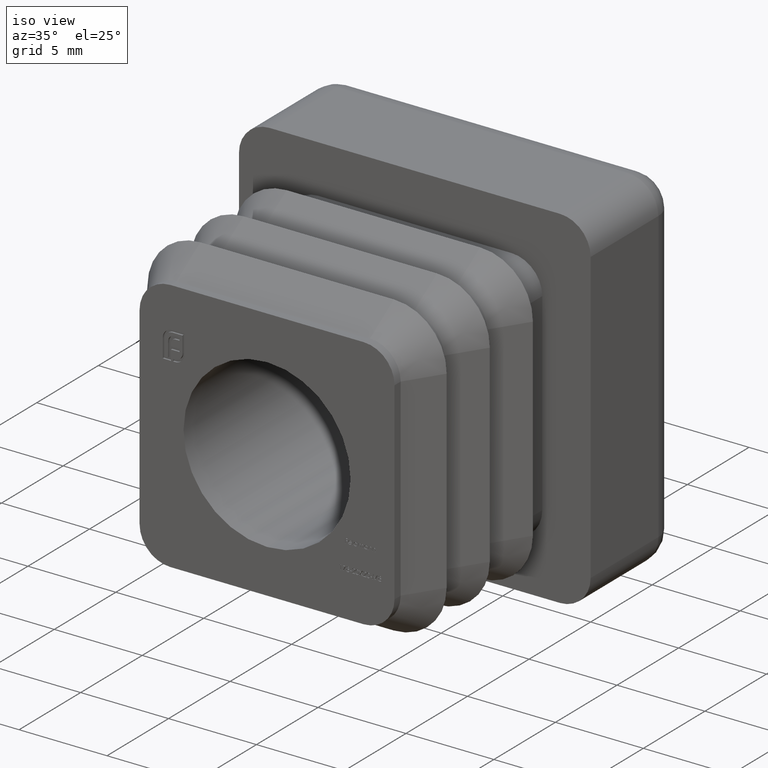
[diagram: clean part render]
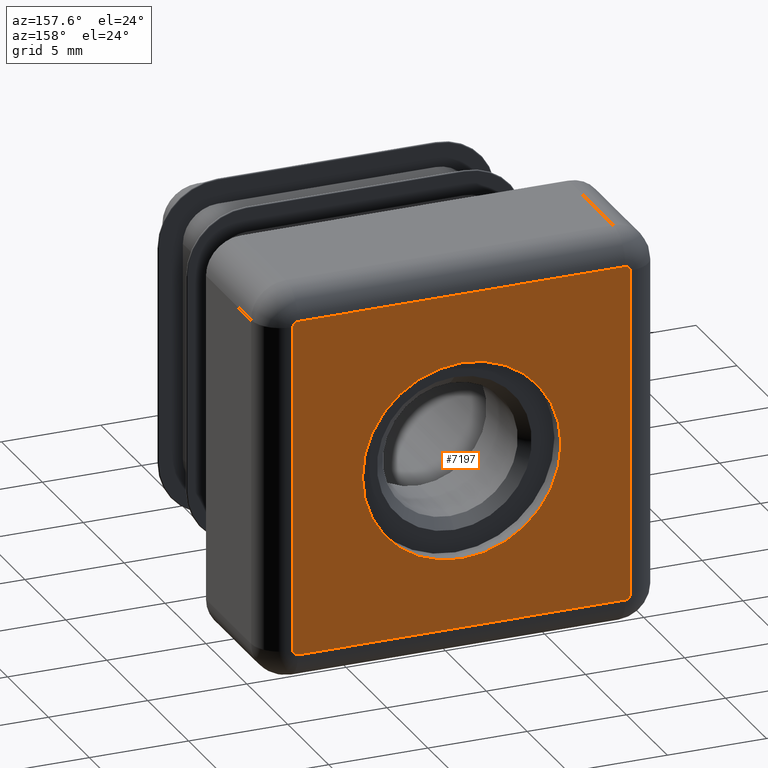
[diagram: tour spotlight — one face highlighted and labeled with its STEP entity id]
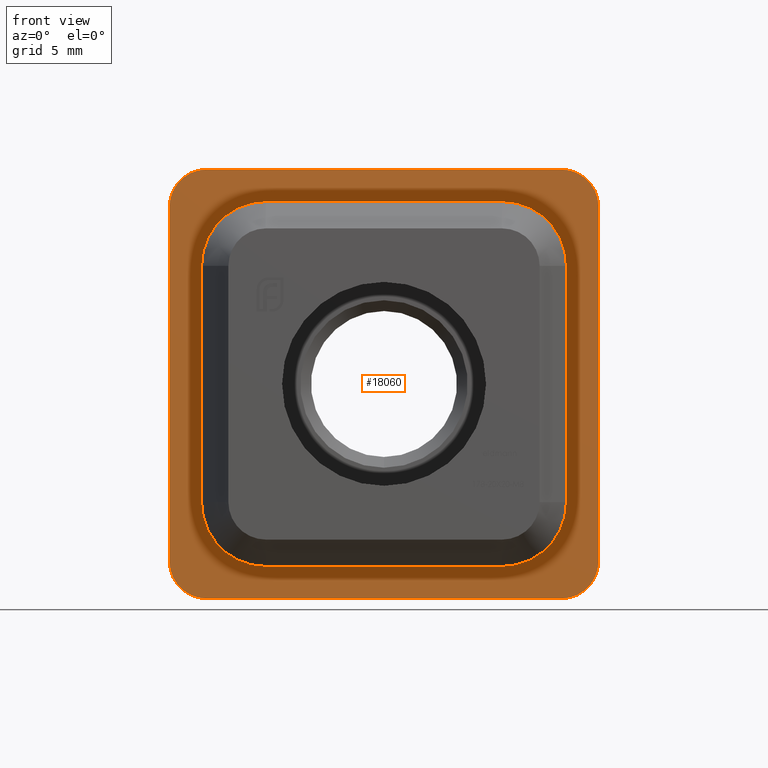
[diagram: tour spotlight — one face highlighted and labeled with its STEP entity id]
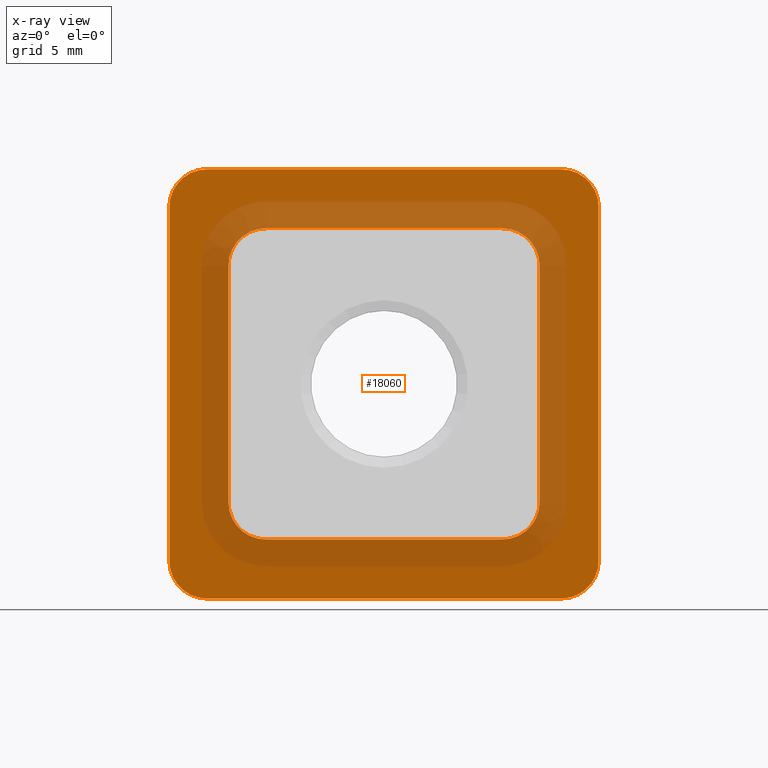
[diagram: x-ray of the same camera — body ghosted, this tour face saturated]
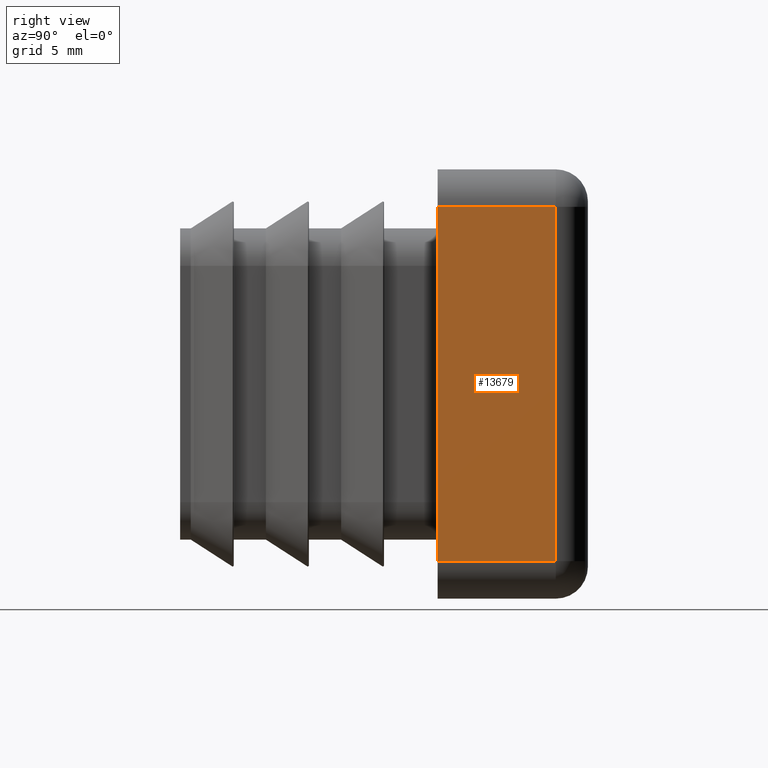
[diagram: tour spotlight — one face highlighted and labeled with its STEP entity id]
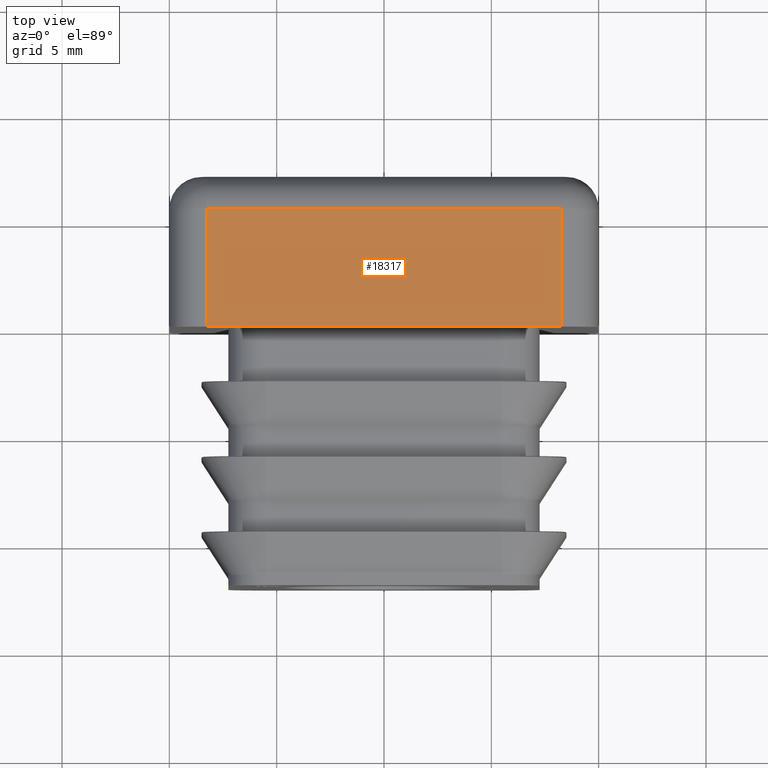
[diagram: tour spotlight — one face highlighted and labeled with its STEP entity id]
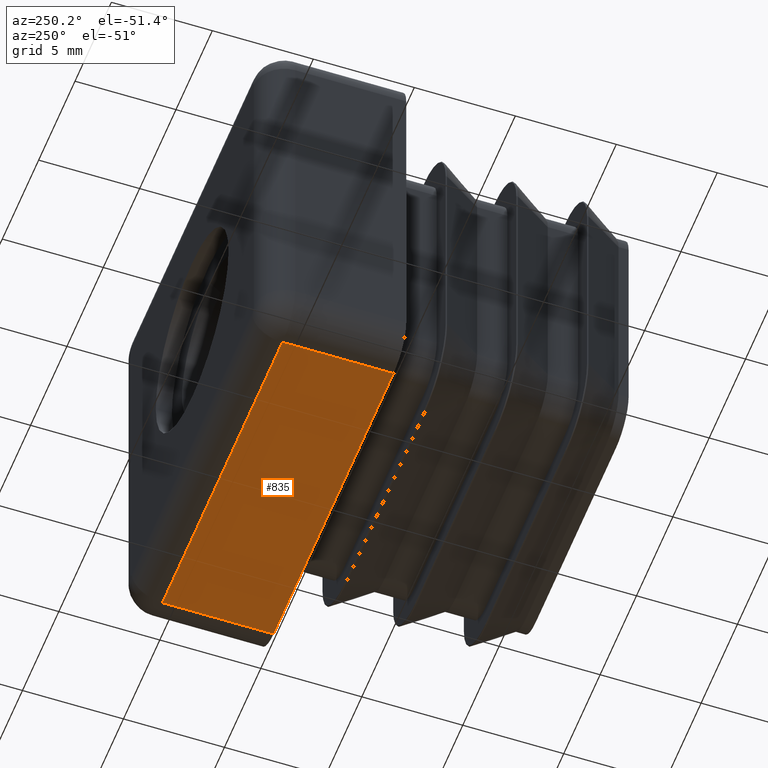
[diagram: tour spotlight — one face highlighted and labeled with its STEP entity id]
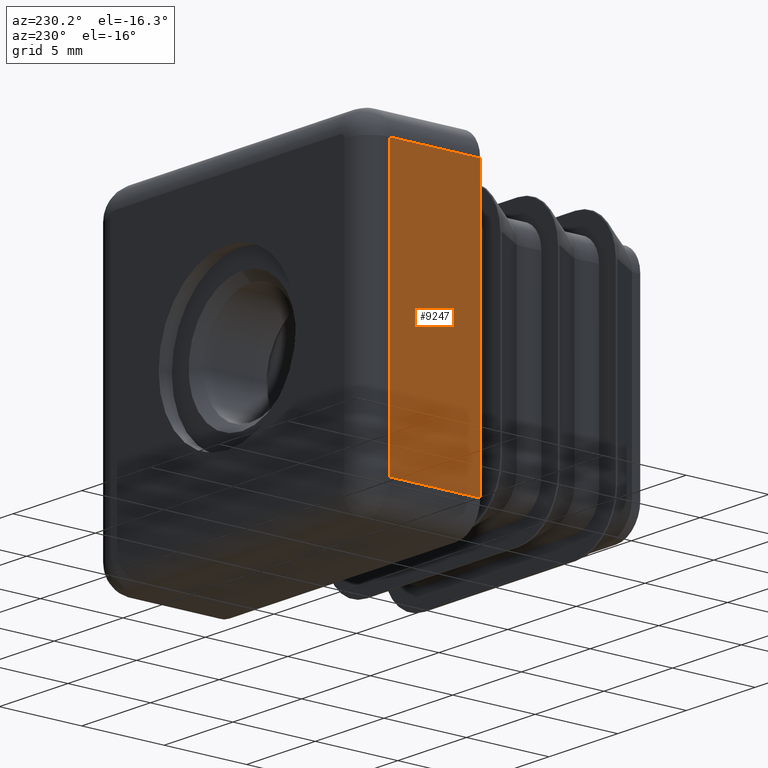
[diagram: tour spotlight — one face highlighted and labeled with its STEP entity id]
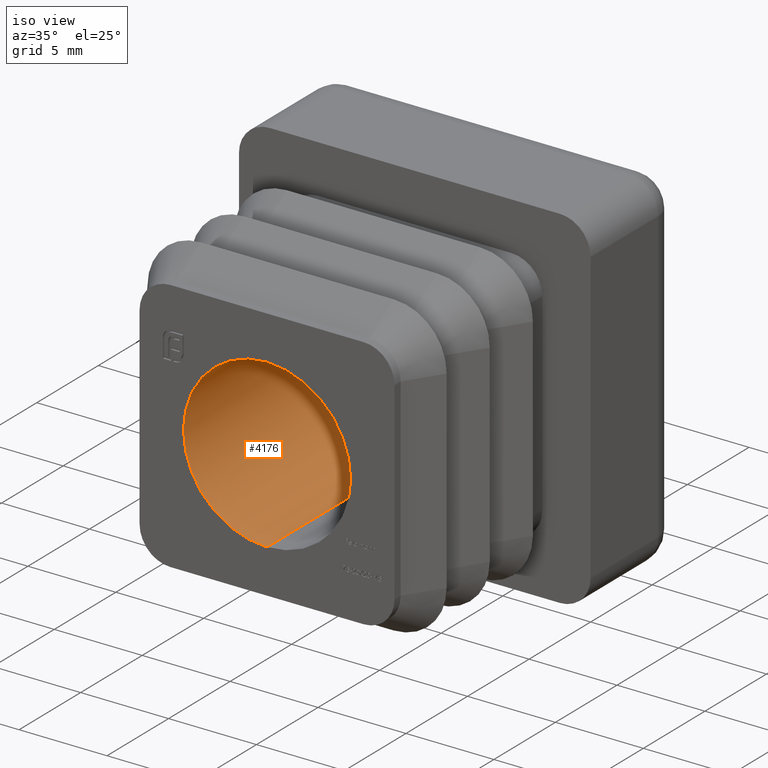
[diagram: tour spotlight — one face highlighted and labeled with its STEP entity id]
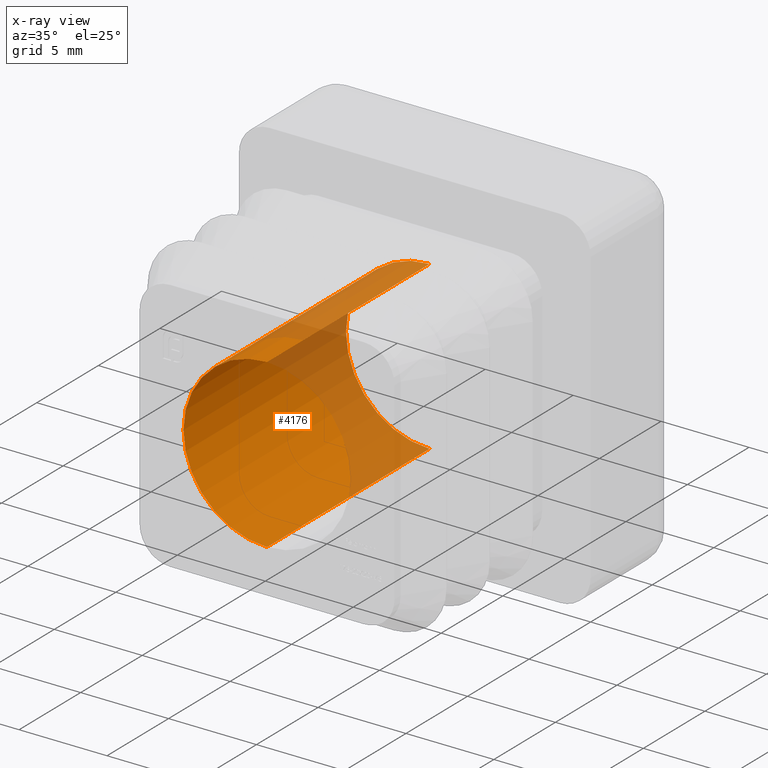
[diagram: x-ray of the same camera — body ghosted, this tour face saturated]
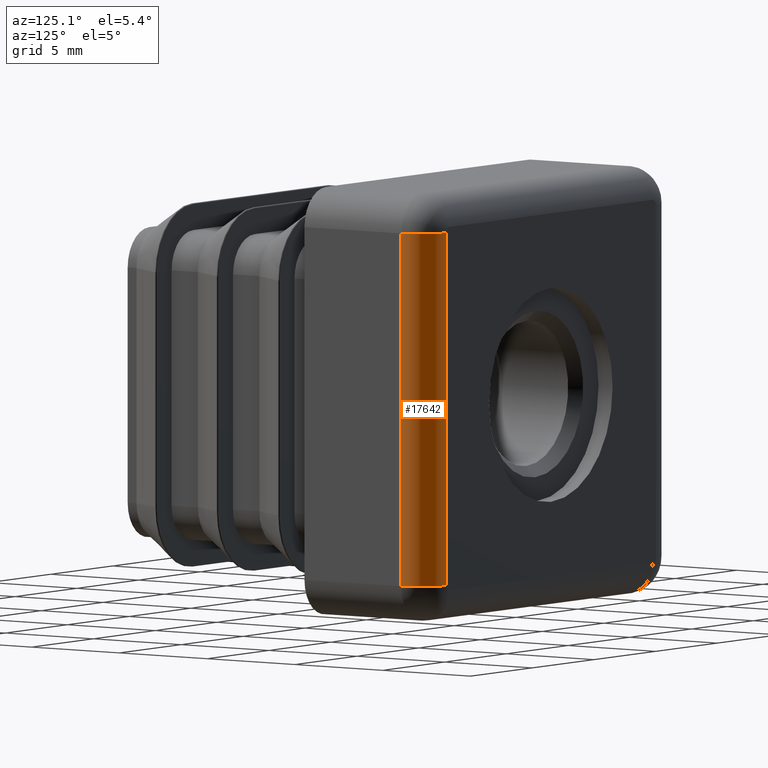
[diagram: tour spotlight — one face highlighted and labeled with its STEP entity id]
A machine part: a face-by-face anatomy tour. The part has 462 B-rep faces; the first image is the clean iso view, then the 8 largest visible faces are spotlighted one at a time (largest first), each with its STEP entity span.

Face 1 — auxiliary view, entity #7197. In plain terms, the highlighted planar face has unit normal (0, 1, 0).
Definition (entity closure, byte-faithful):
#8 = LINE ( 'NONE', #7930, #3702 ) ;
#117 = VECTOR ( 'NONE', #13804, 1000.000000000000000 ) ;
#844 = DIRECTION ( 'NONE',  ( 0.000000000000000000, 1.000000000000000000, 0.000000000000000000 ) ) ;
#979 = AXIS2_PLACEMENT_3D ( 'NONE', #8933, #19899, #19968 ) ;
#1081 = EDGE_LOOP ( 'NONE', ( #18365, #5199 ) ) ;
#1307 = LINE ( 'NONE', #17039, #8194 ) ;
#1452 = AXIS2_PLACEMENT_3D ( 'NONE', #19446, #844, #16345 ) ;
#1607 = DIRECTION ( 'NONE',  ( 0.000000000000000000, 1.000000000000000000, 0.000000000000000000 ) ) ;
#1611 = CARTESIAN_POINT ( 'NONE',  ( 8.500000000000001776, 7.000000000000000000, -8.249999999999994671 ) ) ;
#1613 = EDGE_CURVE ( 'NONE', #12634, #11911, #16487, .T. ) ;
#1678 = DIRECTION ( 'NONE',  ( 0.000000000000000000, 0.000000000000000000, 1.000000000000000000 ) ) ;
#1861 = CARTESIAN_POINT ( 'NONE',  ( 0.000000000000000000, 7.000000000000000000, 0.000000000000000000 ) ) ;
#2202 = CARTESIAN_POINT ( 'NONE',  ( 0.000000000000000000, 7.000000000000000000, 5.000000000000000000 ) ) ;
#2270 = VERTEX_POINT ( 'NONE', #3136 ) ;
#2692 = AXIS2_PLACEMENT_3D ( 'NONE', #1861, #1607, #1678 ) ;
#3136 = CARTESIAN_POINT ( 'NONE',  ( 8.250000000000007105, 7.000000000000000000, 8.500000000000005329 ) ) ;
#3420 = LINE ( 'NONE', #12667, #8600 ) ;
#3702 = VECTOR ( 'NONE', #4890, 1000.000000000000000 ) ;
#3945 = DIRECTION ( 'NONE',  ( 0.000000000000000000, 1.000000000000000000, 0.000000000000000000 ) ) ;
#4004 = ORIENTED_EDGE ( 'NONE', *, *, #1613, .T. ) ;
#4207 = DIRECTION ( 'NONE',  ( 0.000000000000000000, 0.000000000000000000, 1.000000000000000000 ) ) ;
#4685 = EDGE_CURVE ( 'NONE', #2270, #20286, #10975, .T. ) ;
#4890 = DIRECTION ( 'NONE',  ( 1.000000000000000000, -0.000000000000000000, 0.000000000000000000 ) ) ;
#5199 = ORIENTED_EDGE ( 'NONE', *, *, #8943, .F. ) ;
#5383 = ORIENTED_EDGE ( 'NONE', *, *, #16416, .T. ) ;
#6034 = CARTESIAN_POINT ( 'NONE',  ( -8.499999999999998224, 7.000000000000000000, -8.249999999999994671 ) ) ;
#6291 = DIRECTION ( 'NONE',  ( -2.602085213965210642E-16, 0.000000000000000000, -1.000000000000000000 ) ) ;
#6624 = CARTESIAN_POINT ( 'NONE',  ( -8.249999999999998224, 7.000000000000000000, -8.249999999999994671 ) ) ;
#6947 = CARTESIAN_POINT ( 'NONE',  ( -8.249999999999994671, 7.000000000000000000, 8.500000000000005329 ) ) ;
#7197 = ADVANCED_FACE ( 'NONE', ( #16529, #14920 ), #12299, .T. ) ;
#7338 = CIRCLE ( 'NONE', #2692, 5.000000000000000000 ) ;
#7398 = DIRECTION ( 'NONE',  ( 0.000000000000000000, 1.000000000000000000, 0.000000000000000000 ) ) ;
#7437 = CARTESIAN_POINT ( 'NONE',  ( 8.250000000000003553, 7.000000000000000000, -8.499999999999994671 ) ) ;
#7930 = CARTESIAN_POINT ( 'NONE',  ( 8.250000000000007105, 7.000000000000000000, 8.500000000000005329 ) ) ;
#8194 = VECTOR ( 'NONE', #6291, 1000.000000000000000 ) ;
#8600 = VECTOR ( 'NONE', #14124, 1000.000000000000000 ) ;
#8688 = ORIENTED_EDGE ( 'NONE', *, *, #19142, .T. ) ;
#8705 = CARTESIAN_POINT ( 'NONE',  ( -8.249999999999994671, 7.000000000000000000, 8.250000000000005329 ) ) ;
#8712 = DIRECTION ( 'NONE',  ( 0.000000000000000000, 0.000000000000000000, 1.000000000000000000 ) ) ;
#8840 = AXIS2_PLACEMENT_3D ( 'NONE', #8705, #3945, #11785 ) ;
#8894 = CARTESIAN_POINT ( 'NONE',  ( 0.000000000000000000, 7.000000000000000000, 0.000000000000000000 ) ) ;
#8933 = CARTESIAN_POINT ( 'NONE',  ( 0.000000000000000000, 7.000000000000000000, 0.000000000000000000 ) ) ;
#8943 = EDGE_CURVE ( 'NONE', #9951, #19560, #7338, .T. ) ;
#9143 = VERTEX_POINT ( 'NONE', #6034 ) ;
#9730 = LINE ( 'NONE', #16855, #117 ) ;
#9951 = VERTEX_POINT ( 'NONE', #17668 ) ;
#10036 = CARTESIAN_POINT ( 'NONE',  ( -8.499999999999994671, 7.000000000000000000, 8.250000000000005329 ) ) ;
#10273 = EDGE_CURVE ( 'NONE', #19764, #14749, #9730, .T. ) ;
#10318 = VERTEX_POINT ( 'NONE', #1611 ) ;
#10470 = AXIS2_PLACEMENT_3D ( 'NONE', #6624, #17610, #13062 ) ;
#10471 = CARTESIAN_POINT ( 'NONE',  ( 8.250000000000007105, 7.000000000000000000, 8.250000000000007105 ) ) ;
#10948 = AXIS2_PLACEMENT_3D ( 'NONE', #10471, #11866, #8712 ) ;
#10975 = CIRCLE ( 'NONE', #10948, 0.2500000000000002220 ) ;
#11389 = EDGE_CURVE ( 'NONE', #14749, #9143, #11947, .T. ) ;
#11589 = CIRCLE ( 'NONE', #14818, 5.000000000000000000 ) ;
#11785 = DIRECTION ( 'NONE',  ( 0.000000000000000000, 0.000000000000000000, 1.000000000000000000 ) ) ;
#11818 = ORIENTED_EDGE ( 'NONE', *, *, #11389, .T. ) ;
#11820 = EDGE_LOOP ( 'NONE', ( #14027, #4004, #5383, #14030, #15773, #8688, #17678, #11818 ) ) ;
#11866 = DIRECTION ( 'NONE',  ( 0.000000000000000000, 1.000000000000000000, 0.000000000000000000 ) ) ;
#11911 = VERTEX_POINT ( 'NONE', #6947 ) ;
#11947 = CIRCLE ( 'NONE', #10470, 0.2500000000000002220 ) ;
#12299 = PLANE ( 'NONE',  #979 ) ;
#12634 = VERTEX_POINT ( 'NONE', #10036 ) ;
#12667 = CARTESIAN_POINT ( 'NONE',  ( -8.499999999999994671, 7.000000000000000000, 8.250000000000007105 ) ) ;
#13062 = DIRECTION ( 'NONE',  ( 0.000000000000000000, 0.000000000000000000, 1.000000000000000000 ) ) ;
#13804 = DIRECTION ( 'NONE',  ( -1.000000000000000000, 0.000000000000000000, 0.000000000000000000 ) ) ;
#14027 = ORIENTED_EDGE ( 'NONE', *, *, #17771, .T. ) ;
#14030 = ORIENTED_EDGE ( 'NONE', *, *, #4685, .T. ) ;
#14124 = DIRECTION ( 'NONE',  ( 1.734723475976807341E-16, -0.000000000000000000, 1.000000000000000000 ) ) ;
#14130 = EDGE_CURVE ( 'NONE', #20286, #10318, #1307, .T. ) ;
#14749 = VERTEX_POINT ( 'NONE', #16446 ) ;
#14818 = AXIS2_PLACEMENT_3D ( 'NONE', #8894, #7398, #4207 ) ;
#14920 = FACE_BOUND ( 'NONE', #1081, .T. ) ;
#15123 = EDGE_CURVE ( 'NONE', #19560, #9951, #11589, .T. ) ;
#15239 = CIRCLE ( 'NONE', #1452, 0.2500000000000002220 ) ;
#15773 = ORIENTED_EDGE ( 'NONE', *, *, #14130, .T. ) ;
#16345 = DIRECTION ( 'NONE',  ( 0.000000000000000000, 0.000000000000000000, 1.000000000000000000 ) ) ;
#16416 = EDGE_CURVE ( 'NONE', #11911, #2270, #8, .T. ) ;
#16446 = CARTESIAN_POINT ( 'NONE',  ( -8.249999999999998224, 7.000000000000000000, -8.499999999999994671 ) ) ;
#16487 = CIRCLE ( 'NONE', #8840, 0.2500000000000002220 ) ;
#16529 = FACE_OUTER_BOUND ( 'NONE', #11820, .T. ) ;
#16855 = CARTESIAN_POINT ( 'NONE',  ( -8.249999999999998224, 7.000000000000000000, -8.499999999999994671 ) ) ;
#17039 = CARTESIAN_POINT ( 'NONE',  ( 8.500000000000001776, 7.000000000000000000, -8.249999999999994671 ) ) ;
#17610 = DIRECTION ( 'NONE',  ( 0.000000000000000000, 1.000000000000000000, 0.000000000000000000 ) ) ;
#17668 = CARTESIAN_POINT ( 'NONE',  ( 6.123233995736766282E-16, 7.000000000000000000, -5.000000000000000000 ) ) ;
#17678 = ORIENTED_EDGE ( 'NONE', *, *, #10273, .T. ) ;
#17771 = EDGE_CURVE ( 'NONE', #9143, #12634, #3420, .T. ) ;
#18365 = ORIENTED_EDGE ( 'NONE', *, *, #15123, .F. ) ;
#18636 = CARTESIAN_POINT ( 'NONE',  ( 8.500000000000007105, 7.000000000000000000, 8.250000000000007105 ) ) ;
#19142 = EDGE_CURVE ( 'NONE', #10318, #19764, #15239, .T. ) ;
#19446 = CARTESIAN_POINT ( 'NONE',  ( 8.250000000000003553, 7.000000000000000000, -8.249999999999994671 ) ) ;
#19560 = VERTEX_POINT ( 'NONE', #2202 ) ;
#19764 = VERTEX_POINT ( 'NONE', #7437 ) ;
#19899 = DIRECTION ( 'NONE',  ( 0.000000000000000000, 1.000000000000000000, 0.000000000000000000 ) ) ;
#19968 = DIRECTION ( 'NONE',  ( 0.000000000000000000, -0.000000000000000000, 1.000000000000000000 ) ) ;
#20286 = VERTEX_POINT ( 'NONE', #18636 ) ;

Face 2 — front view, entity #18060. An x-ray twin of the same camera follows (body ghosted, this face saturated) — the face is partly hidden behind the body. In plain terms, the highlighted planar face has unit normal (0, 1, 0).
Definition (entity closure, byte-faithful):
#41 = ORIENTED_EDGE ( 'NONE', *, *, #5020, .T. ) ;
#104 = VECTOR ( 'NONE', #10466, 1000.000000000000000 ) ;
#146 = LINE ( 'NONE', #20268, #13184 ) ;
#221 = ORIENTED_EDGE ( 'NONE', *, *, #3365, .T. ) ;
#239 = CARTESIAN_POINT ( 'NONE',  ( 7.249999999999999112, 0.000000000000000000, 7.249999999999994671 ) ) ;
#337 = CARTESIAN_POINT ( 'NONE',  ( -8.249999999999994671, 0.000000000000000000, 10.00000000000000533 ) ) ;
#627 = CARTESIAN_POINT ( 'NONE',  ( -9.999999999999998224, 0.000000000000000000, -8.249999999999994671 ) ) ;
#663 = CIRCLE ( 'NONE', #10019, 1.749999999999999778 ) ;
#811 = EDGE_CURVE ( 'NONE', #7148, #8703, #7631, .T. ) ;
#837 = CARTESIAN_POINT ( 'NONE',  ( 0.000000000000000000, 0.000000000000000000, 0.000000000000000000 ) ) ;
#1051 = VERTEX_POINT ( 'NONE', #627 ) ;
#1271 = VERTEX_POINT ( 'NONE', #337 ) ;
#1331 = DIRECTION ( 'NONE',  ( 2.392722035830078972E-16, -0.000000000000000000, -1.000000000000000000 ) ) ;
#1431 = VERTEX_POINT ( 'NONE', #1869 ) ;
#1689 = CARTESIAN_POINT ( 'NONE',  ( -8.249999999999998224, 0.000000000000000000, -8.249999999999994671 ) ) ;
#1757 = EDGE_CURVE ( 'NONE', #19523, #17822, #3162, .T. ) ;
#1869 = CARTESIAN_POINT ( 'NONE',  ( -9.999999999999994671, 0.000000000000000000, 8.250000000000007105 ) ) ;
#1964 = ORIENTED_EDGE ( 'NONE', *, *, #5054, .T. ) ;
#2205 = DIRECTION ( 'NONE',  ( 0.000000000000000000, 0.000000000000000000, 1.000000000000000000 ) ) ;
#2323 = CARTESIAN_POINT ( 'NONE',  ( -5.499999999999992895, 0.000000000000000000, -7.250000000000004441 ) ) ;
#2419 = PLANE ( 'NONE',  #14502 ) ;
#3162 = CIRCLE ( 'NONE', #9875, 1.749999999999999778 ) ;
#3291 = AXIS2_PLACEMENT_3D ( 'NONE', #17913, #6850, #11547 ) ;
#3365 = EDGE_CURVE ( 'NONE', #1271, #1431, #17655, .T. ) ;
#3680 = ORIENTED_EDGE ( 'NONE', *, *, #15022, .F. ) ;
#3858 = CARTESIAN_POINT ( 'NONE',  ( 7.250000000000005329, 0.000000000000000000, -5.500000000000003553 ) ) ;
#3867 = LINE ( 'NONE', #5170, #5613 ) ;
#3868 = DIRECTION ( 'NONE',  ( 1.734723475976807094E-16, 0.000000000000000000, 1.000000000000000000 ) ) ;
#3987 = DIRECTION ( 'NONE',  ( 0.000000000000000000, 1.000000000000000000, 0.000000000000000000 ) ) ;
#4265 = ORIENTED_EDGE ( 'NONE', *, *, #8826, .T. ) ;
#4337 = VECTOR ( 'NONE', #7795, 1000.000000000000000 ) ;
#4366 = EDGE_CURVE ( 'NONE', #4671, #9970, #663, .T. ) ;
#4671 = VERTEX_POINT ( 'NONE', #11295 ) ;
#4825 = CARTESIAN_POINT ( 'NONE',  ( 5.500000000000000000, 0.000000000000000000, 5.499999999999994671 ) ) ;
#4900 = CARTESIAN_POINT ( 'NONE',  ( 7.250000000000000000, 0.000000000000000000, 5.499999999999995559 ) ) ;
#5019 = ORIENTED_EDGE ( 'NONE', *, *, #10739, .F. ) ;
#5020 = EDGE_CURVE ( 'NONE', #1051, #7116, #19874, .T. ) ;
#5054 = EDGE_CURVE ( 'NONE', #8617, #14785, #15203, .T. ) ;
#5170 = CARTESIAN_POINT ( 'NONE',  ( -7.249999999999996447, 0.000000000000000000, 7.249999999999994671 ) ) ;
#5313 = AXIS2_PLACEMENT_3D ( 'NONE', #11718, #11926, #7341 ) ;
#5343 = VERTEX_POINT ( 'NONE', #3858 ) ;
#5613 = VECTOR ( 'NONE', #16395, 1000.000000000000000 ) ;
#5625 = CARTESIAN_POINT ( 'NONE',  ( -9.999999999999998224, 0.000000000000000000, -9.999999999999994671 ) ) ;
#5981 = DIRECTION ( 'NONE',  ( 0.000000000000000000, 1.000000000000000000, 0.000000000000000000 ) ) ;
#6055 = VERTEX_POINT ( 'NONE', #20059 ) ;
#6550 = EDGE_CURVE ( 'NONE', #15447, #9970, #9466, .T. ) ;
#6850 = DIRECTION ( 'NONE',  ( -0.000000000000000000, -1.000000000000000000, -0.000000000000000000 ) ) ;
#6919 = ORIENTED_EDGE ( 'NONE', *, *, #19588, .F. ) ;
#7018 = CARTESIAN_POINT ( 'NONE',  ( -5.499999999999996447, 0.000000000000000000, 7.249999999999994671 ) ) ;
#7116 = VERTEX_POINT ( 'NONE', #14930 ) ;
#7148 = VERTEX_POINT ( 'NONE', #2323 ) ;
#7341 = DIRECTION ( 'NONE',  ( 0.000000000000000000, 0.000000000000000000, 1.000000000000000000 ) ) ;
#7583 = DIRECTION ( 'NONE',  ( -0.000000000000000000, -1.000000000000000000, -0.000000000000000000 ) ) ;
#7631 = CIRCLE ( 'NONE', #10253, 1.749999999999999778 ) ;
#7642 = CARTESIAN_POINT ( 'NONE',  ( 10.00000000000000711, 0.000000000000000000, 8.250000000000007105 ) ) ;
#7795 = DIRECTION ( 'NONE',  ( 1.000000000000000000, 0.000000000000000000, 0.000000000000000000 ) ) ;
#7832 = CARTESIAN_POINT ( 'NONE',  ( 10.00000000000000178, 0.000000000000000000, -9.999999999999994671 ) ) ;
#7881 = ORIENTED_EDGE ( 'NONE', *, *, #811, .T. ) ;
#8106 = FACE_OUTER_BOUND ( 'NONE', #11015, .T. ) ;
#8530 = LINE ( 'NONE', #15643, #4337 ) ;
#8568 = DIRECTION ( 'NONE',  ( 0.000000000000000000, 1.000000000000000000, 0.000000000000000000 ) ) ;
#8617 = VERTEX_POINT ( 'NONE', #19194 ) ;
#8629 = CARTESIAN_POINT ( 'NONE',  ( -9.999999999999998224, 0.000000000000000000, -9.999999999999994671 ) ) ;
#8673 = VERTEX_POINT ( 'NONE', #16302 ) ;
#8703 = VERTEX_POINT ( 'NONE', #14784 ) ;
#8745 = DIRECTION ( 'NONE',  ( 0.000000000000000000, -0.000000000000000000, 1.000000000000000000 ) ) ;
#8826 = EDGE_CURVE ( 'NONE', #5343, #6055, #9041, .T. ) ;
#9041 = CIRCLE ( 'NONE', #15621, 1.749999999999999778 ) ;
#9272 = VECTOR ( 'NONE', #9672, 1000.000000000000000 ) ;
#9434 = ORIENTED_EDGE ( 'NONE', *, *, #4366, .T. ) ;
#9466 = LINE ( 'NONE', #7832, #16890 ) ;
#9509 = AXIS2_PLACEMENT_3D ( 'NONE', #1689, #17322, #18792 ) ;
#9672 = DIRECTION ( 'NONE',  ( 1.000000000000000000, 0.000000000000000000, 0.000000000000000000 ) ) ;
#9761 = LINE ( 'NONE', #17535, #9272 ) ;
#9875 = AXIS2_PLACEMENT_3D ( 'NONE', #4825, #15858, #10878 ) ;
#9970 = VERTEX_POINT ( 'NONE', #17534 ) ;
#10019 = AXIS2_PLACEMENT_3D ( 'NONE', #20449, #7583, #10721 ) ;
#10253 = AXIS2_PLACEMENT_3D ( 'NONE', #11420, #8568, #19388 ) ;
#10408 = AXIS2_PLACEMENT_3D ( 'NONE', #11610, #11399, #2205 ) ;
#10466 = DIRECTION ( 'NONE',  ( -1.000000000000000000, -0.000000000000000000, -0.000000000000000000 ) ) ;
#10473 = EDGE_LOOP ( 'NONE', ( #12891, #4265, #5019, #7881, #15008, #1964, #6919, #19489 ) ) ;
#10542 = CARTESIAN_POINT ( 'NONE',  ( 5.500000000000005329, 0.000000000000000000, -5.500000000000004441 ) ) ;
#10721 = DIRECTION ( 'NONE',  ( 0.000000000000000000, 0.000000000000000000, 1.000000000000000000 ) ) ;
#10739 = EDGE_CURVE ( 'NONE', #7148, #6055, #8530, .T. ) ;
#10770 = EDGE_CURVE ( 'NONE', #8617, #8703, #146, .T. ) ;
#10878 = DIRECTION ( 'NONE',  ( 0.000000000000000000, 0.000000000000000000, 1.000000000000000000 ) ) ;
#11015 = EDGE_LOOP ( 'NONE', ( #11567, #221, #3680, #41, #14020, #9434, #13060, #12071 ) ) ;
#11295 = CARTESIAN_POINT ( 'NONE',  ( 8.250000000000003553, 0.000000000000000000, -9.999999999999994671 ) ) ;
#11399 = DIRECTION ( 'NONE',  ( -0.000000000000000000, -1.000000000000000000, -0.000000000000000000 ) ) ;
#11420 = CARTESIAN_POINT ( 'NONE',  ( -5.499999999999992895, 0.000000000000000000, -5.500000000000005329 ) ) ;
#11496 = CARTESIAN_POINT ( 'NONE',  ( 5.500000000000000000, 0.000000000000000000, 7.249999999999994671 ) ) ;
#11547 = DIRECTION ( 'NONE',  ( 0.000000000000000000, 0.000000000000000000, 1.000000000000000000 ) ) ;
#11557 = LINE ( 'NONE', #239, #18988 ) ;
#11567 = ORIENTED_EDGE ( 'NONE', *, *, #20005, .F. ) ;
#11610 = CARTESIAN_POINT ( 'NONE',  ( -8.249999999999994671, 0.000000000000000000, 8.250000000000005329 ) ) ;
#11718 = CARTESIAN_POINT ( 'NONE',  ( -5.499999999999996447, 0.000000000000000000, 5.499999999999994671 ) ) ;
#11926 = DIRECTION ( 'NONE',  ( 0.000000000000000000, 1.000000000000000000, 0.000000000000000000 ) ) ;
#12071 = ORIENTED_EDGE ( 'NONE', *, *, #17920, .T. ) ;
#12085 = EDGE_CURVE ( 'NONE', #4671, #7116, #16886, .T. ) ;
#12891 = ORIENTED_EDGE ( 'NONE', *, *, #17046, .F. ) ;
#13060 = ORIENTED_EDGE ( 'NONE', *, *, #6550, .F. ) ;
#13184 = VECTOR ( 'NONE', #1331, 1000.000000000000000 ) ;
#14020 = ORIENTED_EDGE ( 'NONE', *, *, #12085, .F. ) ;
#14502 = AXIS2_PLACEMENT_3D ( 'NONE', #837, #3987, #8745 ) ;
#14784 = CARTESIAN_POINT ( 'NONE',  ( -7.249999999999992895, 0.000000000000000000, -5.500000000000005329 ) ) ;
#14785 = VERTEX_POINT ( 'NONE', #7018 ) ;
#14930 = CARTESIAN_POINT ( 'NONE',  ( -8.249999999999998224, 0.000000000000000000, -9.999999999999994671 ) ) ;
#15008 = ORIENTED_EDGE ( 'NONE', *, *, #10770, .F. ) ;
#15022 = EDGE_CURVE ( 'NONE', #1051, #1431, #20255, .T. ) ;
#15203 = CIRCLE ( 'NONE', #5313, 1.749999999999999778 ) ;
#15447 = VERTEX_POINT ( 'NONE', #7642 ) ;
#15621 = AXIS2_PLACEMENT_3D ( 'NONE', #10542, #5981, #16983 ) ;
#15643 = CARTESIAN_POINT ( 'NONE',  ( -7.249999999999992895, -0.000000000000000000, -7.250000000000004441 ) ) ;
#15858 = DIRECTION ( 'NONE',  ( 0.000000000000000000, 1.000000000000000000, 0.000000000000000000 ) ) ;
#16302 = CARTESIAN_POINT ( 'NONE',  ( 8.250000000000007105, 0.000000000000000000, 10.00000000000000533 ) ) ;
#16395 = DIRECTION ( 'NONE',  ( -1.000000000000000000, -0.000000000000000000, -0.000000000000000000 ) ) ;
#16494 = CIRCLE ( 'NONE', #3291, 1.749999999999999778 ) ;
#16886 = LINE ( 'NONE', #5625, #104 ) ;
#16890 = VECTOR ( 'NONE', #18859, 1000.000000000000000 ) ;
#16983 = DIRECTION ( 'NONE',  ( 0.000000000000000000, 0.000000000000000000, 1.000000000000000000 ) ) ;
#17046 = EDGE_CURVE ( 'NONE', #5343, #17822, #11557, .T. ) ;
#17322 = DIRECTION ( 'NONE',  ( -0.000000000000000000, -1.000000000000000000, -0.000000000000000000 ) ) ;
#17534 = CARTESIAN_POINT ( 'NONE',  ( 10.00000000000000178, 0.000000000000000000, -8.249999999999994671 ) ) ;
#17535 = CARTESIAN_POINT ( 'NONE',  ( -9.999999999999994671, 0.000000000000000000, 10.00000000000000533 ) ) ;
#17655 = CIRCLE ( 'NONE', #10408, 1.749999999999999778 ) ;
#17701 = FACE_BOUND ( 'NONE', #10473, .T. ) ;
#17822 = VERTEX_POINT ( 'NONE', #4900 ) ;
#17913 = CARTESIAN_POINT ( 'NONE',  ( 8.250000000000007105, 0.000000000000000000, 8.250000000000007105 ) ) ;
#17920 = EDGE_CURVE ( 'NONE', #15447, #8673, #16494, .T. ) ;
#18060 = ADVANCED_FACE ( 'NONE', ( #8106, #17701 ), #2419, .F. ) ;
#18792 = DIRECTION ( 'NONE',  ( 0.000000000000000000, 0.000000000000000000, 1.000000000000000000 ) ) ;
#18859 = DIRECTION ( 'NONE',  ( -2.602085213965210642E-16, -0.000000000000000000, -1.000000000000000000 ) ) ;
#18988 = VECTOR ( 'NONE', #19183, 1000.000000000000000 ) ;
#19183 = DIRECTION ( 'NONE',  ( -4.785444071660157944E-16, -0.000000000000000000, 1.000000000000000000 ) ) ;
#19194 = CARTESIAN_POINT ( 'NONE',  ( -7.249999999999996447, 0.000000000000000000, 5.499999999999994671 ) ) ;
#19388 = DIRECTION ( 'NONE',  ( 0.000000000000000000, 0.000000000000000000, 1.000000000000000000 ) ) ;
#19489 = ORIENTED_EDGE ( 'NONE', *, *, #1757, .T. ) ;
#19523 = VERTEX_POINT ( 'NONE', #11496 ) ;
#19588 = EDGE_CURVE ( 'NONE', #19523, #14785, #3867, .T. ) ;
#19779 = VECTOR ( 'NONE', #3868, 1000.000000000000000 ) ;
#19874 = CIRCLE ( 'NONE', #9509, 1.749999999999999778 ) ;
#20005 = EDGE_CURVE ( 'NONE', #1271, #8673, #9761, .T. ) ;
#20059 = CARTESIAN_POINT ( 'NONE',  ( 5.500000000000005329, 0.000000000000000000, -7.250000000000004441 ) ) ;
#20255 = LINE ( 'NONE', #8629, #19779 ) ;
#20268 = CARTESIAN_POINT ( 'NONE',  ( -7.249999999999996447, 0.000000000000000000, 7.249999999999994671 ) ) ;
#20449 = CARTESIAN_POINT ( 'NONE',  ( 8.250000000000003553, 0.000000000000000000, -8.249999999999994671 ) ) ;

Face 3 — right view, entity #13679. In plain terms, the highlighted planar face has unit normal (-1, 0, 0).
Definition (entity closure, byte-faithful):
#15 = CARTESIAN_POINT ( 'NONE',  ( 10.00000000000000711, 5.500000000000000000, 8.250000000000007105 ) ) ;
#244 = CARTESIAN_POINT ( 'NONE',  ( 10.00000000000000178, 5.500000000000000000, -8.249999999999994671 ) ) ;
#1326 = EDGE_CURVE ( 'NONE', #9970, #13545, #5668, .T. ) ;
#1836 = LINE ( 'NONE', #15, #19619 ) ;
#2350 = ORIENTED_EDGE ( 'NONE', *, *, #1326, .T. ) ;
#3567 = VECTOR ( 'NONE', #15935, 1000.000000000000000 ) ;
#4322 = LINE ( 'NONE', #8277, #3567 ) ;
#4371 = DIRECTION ( 'NONE',  ( 2.602085213965210642E-16, 0.000000000000000000, 1.000000000000000000 ) ) ;
#4514 = FACE_OUTER_BOUND ( 'NONE', #18977, .T. ) ;
#5668 = LINE ( 'NONE', #14018, #14253 ) ;
#5748 = EDGE_CURVE ( 'NONE', #14138, #15447, #4322, .T. ) ;
#5930 = EDGE_CURVE ( 'NONE', #13545, #14138, #1836, .T. ) ;
#6550 = EDGE_CURVE ( 'NONE', #15447, #9970, #9466, .T. ) ;
#7642 = CARTESIAN_POINT ( 'NONE',  ( 10.00000000000000711, 0.000000000000000000, 8.250000000000007105 ) ) ;
#7832 = CARTESIAN_POINT ( 'NONE',  ( 10.00000000000000178, 0.000000000000000000, -9.999999999999994671 ) ) ;
#8277 = CARTESIAN_POINT ( 'NONE',  ( 10.00000000000000711, 7.000000000000000000, 8.250000000000007105 ) ) ;
#9466 = LINE ( 'NONE', #7832, #16890 ) ;
#9970 = VERTEX_POINT ( 'NONE', #17534 ) ;
#11022 = DIRECTION ( 'NONE',  ( 2.602085213965210642E-16, -0.000000000000000000, 1.000000000000000000 ) ) ;
#12022 = ORIENTED_EDGE ( 'NONE', *, *, #5748, .T. ) ;
#12286 = PLANE ( 'NONE',  #20422 ) ;
#13545 = VERTEX_POINT ( 'NONE', #244 ) ;
#13679 = ADVANCED_FACE ( 'NONE', ( #4514 ), #12286, .F. ) ;
#13806 = CARTESIAN_POINT ( 'NONE',  ( 10.00000000000000178, 7.000000000000000000, -9.999999999999994671 ) ) ;
#13870 = DIRECTION ( 'NONE',  ( -1.000000000000000000, 0.000000000000000000, 2.602085213965210642E-16 ) ) ;
#14018 = CARTESIAN_POINT ( 'NONE',  ( 10.00000000000000178, 7.000000000000000000, -8.249999999999994671 ) ) ;
#14138 = VERTEX_POINT ( 'NONE', #15712 ) ;
#14253 = VECTOR ( 'NONE', #15602, 1000.000000000000000 ) ;
#15447 = VERTEX_POINT ( 'NONE', #7642 ) ;
#15602 = DIRECTION ( 'NONE',  ( -0.000000000000000000, 1.000000000000000000, -0.000000000000000000 ) ) ;
#15712 = CARTESIAN_POINT ( 'NONE',  ( 10.00000000000000711, 5.500000000000000000, 8.250000000000007105 ) ) ;
#15935 = DIRECTION ( 'NONE',  ( 0.000000000000000000, -1.000000000000000000, 0.000000000000000000 ) ) ;
#16890 = VECTOR ( 'NONE', #18859, 1000.000000000000000 ) ;
#17534 = CARTESIAN_POINT ( 'NONE',  ( 10.00000000000000178, 0.000000000000000000, -8.249999999999994671 ) ) ;
#18150 = ORIENTED_EDGE ( 'NONE', *, *, #6550, .T. ) ;
#18504 = ORIENTED_EDGE ( 'NONE', *, *, #5930, .T. ) ;
#18859 = DIRECTION ( 'NONE',  ( -2.602085213965210642E-16, -0.000000000000000000, -1.000000000000000000 ) ) ;
#18977 = EDGE_LOOP ( 'NONE', ( #2350, #18504, #12022, #18150 ) ) ;
#19619 = VECTOR ( 'NONE', #11022, 1000.000000000000000 ) ;
#20422 = AXIS2_PLACEMENT_3D ( 'NONE', #13806, #13870, #4371 ) ;

Face 4 — top view, entity #18317. In plain terms, the highlighted planar face has unit normal (0, 0, -1).
Definition (entity closure, byte-faithful):
#337 = CARTESIAN_POINT ( 'NONE',  ( -8.249999999999994671, 0.000000000000000000, 10.00000000000000533 ) ) ;
#472 = DIRECTION ( 'NONE',  ( 0.000000000000000000, 0.000000000000000000, -1.000000000000000000 ) ) ;
#809 = ORIENTED_EDGE ( 'NONE', *, *, #20005, .T. ) ;
#1271 = VERTEX_POINT ( 'NONE', #337 ) ;
#2036 = CARTESIAN_POINT ( 'NONE',  ( -9.999999999999994671, 7.000000000000000000, 10.00000000000000533 ) ) ;
#2220 = DIRECTION ( 'NONE',  ( -1.000000000000000000, -0.000000000000000000, -0.000000000000000000 ) ) ;
#2423 = CARTESIAN_POINT ( 'NONE',  ( 8.250000000000007105, 7.000000000000000000, 10.00000000000000533 ) ) ;
#4161 = EDGE_CURVE ( 'NONE', #18185, #9230, #18927, .T. ) ;
#4367 = VECTOR ( 'NONE', #2220, 1000.000000000000000 ) ;
#5386 = EDGE_LOOP ( 'NONE', ( #12821, #18019, #18659, #809 ) ) ;
#5980 = AXIS2_PLACEMENT_3D ( 'NONE', #2036, #472, #13057 ) ;
#6124 = VECTOR ( 'NONE', #9210, 1000.000000000000000 ) ;
#6780 = VECTOR ( 'NONE', #15563, 1000.000000000000000 ) ;
#7773 = CARTESIAN_POINT ( 'NONE',  ( -8.249999999999994671, 7.000000000000000000, 10.00000000000000533 ) ) ;
#7914 = CARTESIAN_POINT ( 'NONE',  ( 8.250000000000007105, 5.500000000000000000, 10.00000000000000533 ) ) ;
#8077 = EDGE_CURVE ( 'NONE', #9230, #1271, #17938, .T. ) ;
#8673 = VERTEX_POINT ( 'NONE', #16302 ) ;
#9210 = DIRECTION ( 'NONE',  ( 0.000000000000000000, -1.000000000000000000, 0.000000000000000000 ) ) ;
#9230 = VERTEX_POINT ( 'NONE', #15639 ) ;
#9272 = VECTOR ( 'NONE', #9672, 1000.000000000000000 ) ;
#9672 = DIRECTION ( 'NONE',  ( 1.000000000000000000, 0.000000000000000000, 0.000000000000000000 ) ) ;
#9761 = LINE ( 'NONE', #17535, #9272 ) ;
#12821 = ORIENTED_EDGE ( 'NONE', *, *, #12864, .T. ) ;
#12864 = EDGE_CURVE ( 'NONE', #8673, #18185, #18838, .T. ) ;
#13057 = DIRECTION ( 'NONE',  ( -1.000000000000000000, 0.000000000000000000, -0.000000000000000000 ) ) ;
#15563 = DIRECTION ( 'NONE',  ( -0.000000000000000000, 1.000000000000000000, -0.000000000000000000 ) ) ;
#15639 = CARTESIAN_POINT ( 'NONE',  ( -8.249999999999994671, 5.500000000000000000, 10.00000000000000533 ) ) ;
#16302 = CARTESIAN_POINT ( 'NONE',  ( 8.250000000000007105, 0.000000000000000000, 10.00000000000000533 ) ) ;
#17535 = CARTESIAN_POINT ( 'NONE',  ( -9.999999999999994671, 0.000000000000000000, 10.00000000000000533 ) ) ;
#17751 = PLANE ( 'NONE',  #5980 ) ;
#17938 = LINE ( 'NONE', #7773, #6124 ) ;
#18019 = ORIENTED_EDGE ( 'NONE', *, *, #4161, .T. ) ;
#18185 = VERTEX_POINT ( 'NONE', #7914 ) ;
#18317 = ADVANCED_FACE ( 'NONE', ( #18701 ), #17751, .F. ) ;
#18659 = ORIENTED_EDGE ( 'NONE', *, *, #8077, .T. ) ;
#18701 = FACE_OUTER_BOUND ( 'NONE', #5386, .T. ) ;
#18838 = LINE ( 'NONE', #2423, #6780 ) ;
#18927 = LINE ( 'NONE', #19520, #4367 ) ;
#19520 = CARTESIAN_POINT ( 'NONE',  ( -8.249999999999994671, 5.500000000000000000, 10.00000000000000533 ) ) ;
#20005 = EDGE_CURVE ( 'NONE', #1271, #8673, #9761, .T. ) ;

Face 5 — auxiliary view, entity #835. In plain terms, the highlighted planar face has unit normal (0, 0, 1).
Definition (entity closure, byte-faithful):
#71 = CARTESIAN_POINT ( 'NONE',  ( 8.250000000000003553, 5.500000000000000000, -9.999999999999994671 ) ) ;
#104 = VECTOR ( 'NONE', #10466, 1000.000000000000000 ) ;
#835 = ADVANCED_FACE ( 'NONE', ( #5430 ), #17866, .F. ) ;
#951 = ORIENTED_EDGE ( 'NONE', *, *, #12085, .T. ) ;
#1235 = LINE ( 'NONE', #3695, #10071 ) ;
#1835 = EDGE_CURVE ( 'NONE', #15703, #16431, #18703, .T. ) ;
#1913 = VECTOR ( 'NONE', #2979, 1000.000000000000000 ) ;
#2090 = EDGE_CURVE ( 'NONE', #7116, #15703, #8579, .T. ) ;
#2979 = DIRECTION ( 'NONE',  ( 1.000000000000000000, -0.000000000000000000, -0.000000000000000000 ) ) ;
#3695 = CARTESIAN_POINT ( 'NONE',  ( 8.250000000000003553, 7.000000000000000000, -9.999999999999994671 ) ) ;
#4671 = VERTEX_POINT ( 'NONE', #11295 ) ;
#4810 = EDGE_LOOP ( 'NONE', ( #19018, #10239, #6800, #951 ) ) ;
#5122 = CARTESIAN_POINT ( 'NONE',  ( -9.999999999999998224, 7.000000000000000000, -9.999999999999994671 ) ) ;
#5222 = DIRECTION ( 'NONE',  ( 0.000000000000000000, -1.000000000000000000, 0.000000000000000000 ) ) ;
#5430 = FACE_OUTER_BOUND ( 'NONE', #4810, .T. ) ;
#5625 = CARTESIAN_POINT ( 'NONE',  ( -9.999999999999998224, 0.000000000000000000, -9.999999999999994671 ) ) ;
#5923 = DIRECTION ( 'NONE',  ( -0.000000000000000000, 1.000000000000000000, -0.000000000000000000 ) ) ;
#6800 = ORIENTED_EDGE ( 'NONE', *, *, #16719, .T. ) ;
#6874 = AXIS2_PLACEMENT_3D ( 'NONE', #5122, #8430, #11493 ) ;
#7116 = VERTEX_POINT ( 'NONE', #14930 ) ;
#8430 = DIRECTION ( 'NONE',  ( 0.000000000000000000, 0.000000000000000000, 1.000000000000000000 ) ) ;
#8579 = LINE ( 'NONE', #18361, #9775 ) ;
#9775 = VECTOR ( 'NONE', #5923, 1000.000000000000000 ) ;
#10071 = VECTOR ( 'NONE', #5222, 1000.000000000000000 ) ;
#10239 = ORIENTED_EDGE ( 'NONE', *, *, #1835, .T. ) ;
#10466 = DIRECTION ( 'NONE',  ( -1.000000000000000000, -0.000000000000000000, -0.000000000000000000 ) ) ;
#11295 = CARTESIAN_POINT ( 'NONE',  ( 8.250000000000003553, 0.000000000000000000, -9.999999999999994671 ) ) ;
#11493 = DIRECTION ( 'NONE',  ( 1.000000000000000000, 0.000000000000000000, -0.000000000000000000 ) ) ;
#12085 = EDGE_CURVE ( 'NONE', #4671, #7116, #16886, .T. ) ;
#14930 = CARTESIAN_POINT ( 'NONE',  ( -8.249999999999998224, 0.000000000000000000, -9.999999999999994671 ) ) ;
#15703 = VERTEX_POINT ( 'NONE', #19888 ) ;
#16431 = VERTEX_POINT ( 'NONE', #17356 ) ;
#16719 = EDGE_CURVE ( 'NONE', #16431, #4671, #1235, .T. ) ;
#16886 = LINE ( 'NONE', #5625, #104 ) ;
#17356 = CARTESIAN_POINT ( 'NONE',  ( 8.250000000000003553, 5.500000000000000000, -9.999999999999994671 ) ) ;
#17866 = PLANE ( 'NONE',  #6874 ) ;
#18361 = CARTESIAN_POINT ( 'NONE',  ( -8.249999999999998224, 7.000000000000000000, -9.999999999999994671 ) ) ;
#18703 = LINE ( 'NONE', #71, #1913 ) ;
#19018 = ORIENTED_EDGE ( 'NONE', *, *, #2090, .T. ) ;
#19888 = CARTESIAN_POINT ( 'NONE',  ( -8.249999999999998224, 5.500000000000000000, -9.999999999999994671 ) ) ;

Face 6 — auxiliary view, entity #9247. In plain terms, the highlighted planar face has unit normal (1, 0, -0).
Definition (entity closure, byte-faithful):
#627 = CARTESIAN_POINT ( 'NONE',  ( -9.999999999999998224, 0.000000000000000000, -8.249999999999994671 ) ) ;
#1051 = VERTEX_POINT ( 'NONE', #627 ) ;
#1431 = VERTEX_POINT ( 'NONE', #1869 ) ;
#1685 = EDGE_CURVE ( 'NONE', #17875, #1051, #11504, .T. ) ;
#1702 = EDGE_CURVE ( 'NONE', #13112, #17875, #17200, .T. ) ;
#1869 = CARTESIAN_POINT ( 'NONE',  ( -9.999999999999994671, 0.000000000000000000, 8.250000000000007105 ) ) ;
#2732 = EDGE_CURVE ( 'NONE', #1431, #13112, #10989, .T. ) ;
#2807 = EDGE_LOOP ( 'NONE', ( #13677, #15980, #7421, #15603 ) ) ;
#2915 = CARTESIAN_POINT ( 'NONE',  ( -9.999999999999998224, 7.000000000000000000, -8.249999999999994671 ) ) ;
#3309 = DIRECTION ( 'NONE',  ( 1.000000000000000000, 0.000000000000000000, -1.734723475976807341E-16 ) ) ;
#3552 = DIRECTION ( 'NONE',  ( -0.000000000000000000, 1.000000000000000000, -0.000000000000000000 ) ) ;
#3617 = VECTOR ( 'NONE', #3552, 1000.000000000000000 ) ;
#3868 = DIRECTION ( 'NONE',  ( 1.734723475976807094E-16, 0.000000000000000000, 1.000000000000000000 ) ) ;
#4335 = FACE_OUTER_BOUND ( 'NONE', #2807, .T. ) ;
#6431 = CARTESIAN_POINT ( 'NONE',  ( -9.999999999999998224, 7.000000000000000000, -9.999999999999994671 ) ) ;
#7421 = ORIENTED_EDGE ( 'NONE', *, *, #1685, .T. ) ;
#8629 = CARTESIAN_POINT ( 'NONE',  ( -9.999999999999998224, 0.000000000000000000, -9.999999999999994671 ) ) ;
#9247 = ADVANCED_FACE ( 'NONE', ( #4335 ), #17622, .F. ) ;
#10989 = LINE ( 'NONE', #13120, #3617 ) ;
#11504 = LINE ( 'NONE', #2915, #12510 ) ;
#12510 = VECTOR ( 'NONE', #13921, 1000.000000000000000 ) ;
#13112 = VERTEX_POINT ( 'NONE', #17823 ) ;
#13120 = CARTESIAN_POINT ( 'NONE',  ( -9.999999999999994671, 7.000000000000000000, 8.250000000000007105 ) ) ;
#13677 = ORIENTED_EDGE ( 'NONE', *, *, #2732, .T. ) ;
#13921 = DIRECTION ( 'NONE',  ( 0.000000000000000000, -1.000000000000000000, 0.000000000000000000 ) ) ;
#15022 = EDGE_CURVE ( 'NONE', #1051, #1431, #20255, .T. ) ;
#15329 = DIRECTION ( 'NONE',  ( -1.734723475976807341E-16, -0.000000000000000000, -1.000000000000000000 ) ) ;
#15603 = ORIENTED_EDGE ( 'NONE', *, *, #15022, .T. ) ;
#15980 = ORIENTED_EDGE ( 'NONE', *, *, #1702, .T. ) ;
#16573 = AXIS2_PLACEMENT_3D ( 'NONE', #6431, #3309, #19294 ) ;
#17042 = CARTESIAN_POINT ( 'NONE',  ( -9.999999999999998224, 5.500000000000000000, -8.249999999999994671 ) ) ;
#17200 = LINE ( 'NONE', #17042, #19433 ) ;
#17362 = CARTESIAN_POINT ( 'NONE',  ( -9.999999999999998224, 5.500000000000000000, -8.249999999999994671 ) ) ;
#17622 = PLANE ( 'NONE',  #16573 ) ;
#17823 = CARTESIAN_POINT ( 'NONE',  ( -9.999999999999994671, 5.500000000000000000, 8.250000000000007105 ) ) ;
#17875 = VERTEX_POINT ( 'NONE', #17362 ) ;
#19294 = DIRECTION ( 'NONE',  ( -1.734723475976807341E-16, 0.000000000000000000, -1.000000000000000000 ) ) ;
#19433 = VECTOR ( 'NONE', #15329, 1000.000000000000000 ) ;
#19779 = VECTOR ( 'NONE', #3868, 1000.000000000000000 ) ;
#20255 = LINE ( 'NONE', #8629, #19779 ) ;

Face 7 — iso view, entity #4176. An x-ray twin of the same camera follows (body ghosted, this face saturated) — the face is partly hidden behind the body. In plain terms, the highlighted cylindrical surface (partial cylindrical patch) has radius 4.75 mm, axis along (-0, -1, -0).
Definition (entity closure, byte-faithful):
#572 = DIRECTION ( 'NONE',  ( -0.000000000000000000, 1.000000000000000000, -0.000000000000000000 ) ) ;
#645 = ORIENTED_EDGE ( 'NONE', *, *, #18426, .T. ) ;
#705 = CIRCLE ( 'NONE', #19022, 4.750000000000000000 ) ;
#1294 = DIRECTION ( 'NONE',  ( -0.000000000000000000, -1.000000000000000000, -0.000000000000000000 ) ) ;
#1601 = CARTESIAN_POINT ( 'NONE',  ( 0.000000000000000000, -12.00000000000000000, -4.750000000000000000 ) ) ;
#2069 = VECTOR ( 'NONE', #1294, 1000.000000000000000 ) ;
#2140 = DIRECTION ( 'NONE',  ( -0.000000000000000000, -1.000000000000000000, -0.000000000000000000 ) ) ;
#3599 = CARTESIAN_POINT ( 'NONE',  ( 0.000000000000000000, 1.199999999999999734, -4.750000000000000000 ) ) ;
#4095 = CARTESIAN_POINT ( 'NONE',  ( 0.000000000000000000, -12.00000000000000000, 0.000000000000000000 ) ) ;
#4176 = ADVANCED_FACE ( 'NONE', ( #6864 ), #13731, .F. ) ;
#5091 = VERTEX_POINT ( 'NONE', #13657 ) ;
#5217 = CARTESIAN_POINT ( 'NONE',  ( 5.817072295949927426E-16, 1.199999999999999734, 4.750000000000000000 ) ) ;
#6785 = DIRECTION ( 'NONE',  ( 0.000000000000000000, 0.000000000000000000, -1.000000000000000000 ) ) ;
#6864 = FACE_OUTER_BOUND ( 'NONE', #16877, .T. ) ;
#7193 = EDGE_CURVE ( 'NONE', #19454, #13812, #16132, .T. ) ;
#7287 = AXIS2_PLACEMENT_3D ( 'NONE', #13229, #2140, #10236 ) ;
#7635 = ORIENTED_EDGE ( 'NONE', *, *, #13802, .T. ) ;
#9070 = CARTESIAN_POINT ( 'NONE',  ( 0.000000000000000000, 2.999999999999999112, -4.750000000000000000 ) ) ;
#10236 = DIRECTION ( 'NONE',  ( 0.000000000000000000, 0.000000000000000000, -1.000000000000000000 ) ) ;
#11398 = ORIENTED_EDGE ( 'NONE', *, *, #12641, .T. ) ;
#12641 = EDGE_CURVE ( 'NONE', #19454, #15590, #16618, .T. ) ;
#13229 = CARTESIAN_POINT ( 'NONE',  ( 0.000000000000000000, 2.999999999999999112, 0.000000000000000000 ) ) ;
#13657 = CARTESIAN_POINT ( 'NONE',  ( 5.817072295949927426E-16, -12.00000000000000000, 4.750000000000000000 ) ) ;
#13731 = CYLINDRICAL_SURFACE ( 'NONE', #7287, 4.750000000000000000 ) ;
#13802 = EDGE_CURVE ( 'NONE', #15590, #5091, #15852, .T. ) ;
#13812 = VERTEX_POINT ( 'NONE', #1601 ) ;
#14003 = CARTESIAN_POINT ( 'NONE',  ( 5.817072295949927426E-16, 2.999999999999999112, 4.750000000000000000 ) ) ;
#14823 = CARTESIAN_POINT ( 'NONE',  ( 0.000000000000000000, 1.199999999999999734, 0.000000000000000000 ) ) ;
#15590 = VERTEX_POINT ( 'NONE', #5217 ) ;
#15852 = LINE ( 'NONE', #14003, #19559 ) ;
#16132 = LINE ( 'NONE', #9070, #2069 ) ;
#16583 = DIRECTION ( 'NONE',  ( 0.000000000000000000, -1.000000000000000000, 0.000000000000000000 ) ) ;
#16618 = CIRCLE ( 'NONE', #18438, 4.750000000000000000 ) ;
#16877 = EDGE_LOOP ( 'NONE', ( #11398, #7635, #645, #19546 ) ) ;
#18304 = DIRECTION ( 'NONE',  ( 0.000000000000000000, 0.000000000000000000, -1.000000000000000000 ) ) ;
#18426 = EDGE_CURVE ( 'NONE', #5091, #13812, #705, .T. ) ;
#18438 = AXIS2_PLACEMENT_3D ( 'NONE', #14823, #572, #6785 ) ;
#19022 = AXIS2_PLACEMENT_3D ( 'NONE', #4095, #16583, #18304 ) ;
#19454 = VERTEX_POINT ( 'NONE', #3599 ) ;
#19546 = ORIENTED_EDGE ( 'NONE', *, *, #7193, .F. ) ;
#19559 = VECTOR ( 'NONE', #20413, 1000.000000000000000 ) ;
#20413 = DIRECTION ( 'NONE',  ( -0.000000000000000000, -1.000000000000000000, -0.000000000000000000 ) ) ;

Face 8 — auxiliary view, entity #17642. In plain terms, the highlighted cylindrical surface (edge-blend (fillet) strip) has radius 1.5 mm, axis along (0, -0, 1).
Definition (entity closure, byte-faithful):
#15 = CARTESIAN_POINT ( 'NONE',  ( 10.00000000000000711, 5.500000000000000000, 8.250000000000007105 ) ) ;
#211 = FACE_OUTER_BOUND ( 'NONE', #14548, .T. ) ;
#244 = CARTESIAN_POINT ( 'NONE',  ( 10.00000000000000178, 5.500000000000000000, -8.249999999999994671 ) ) ;
#1307 = LINE ( 'NONE', #17039, #8194 ) ;
#1397 = DIRECTION ( 'NONE',  ( 1.000000000000000000, 0.000000000000000000, -2.602085213965212614E-16 ) ) ;
#1611 = CARTESIAN_POINT ( 'NONE',  ( 8.500000000000001776, 7.000000000000000000, -8.249999999999994671 ) ) ;
#1836 = LINE ( 'NONE', #15, #19619 ) ;
#2703 = ORIENTED_EDGE ( 'NONE', *, *, #15153, .F. ) ;
#4820 = EDGE_CURVE ( 'NONE', #13545, #10318, #15443, .T. ) ;
#5235 = ORIENTED_EDGE ( 'NONE', *, *, #14130, .F. ) ;
#5814 = AXIS2_PLACEMENT_3D ( 'NONE', #18619, #20333, #1397 ) ;
#5930 = EDGE_CURVE ( 'NONE', #13545, #14138, #1836, .T. ) ;
#6291 = DIRECTION ( 'NONE',  ( -2.602085213965210642E-16, 0.000000000000000000, -1.000000000000000000 ) ) ;
#6718 = CIRCLE ( 'NONE', #16811, 1.499999999999999556 ) ;
#8194 = VECTOR ( 'NONE', #6291, 1000.000000000000000 ) ;
#8273 = ORIENTED_EDGE ( 'NONE', *, *, #5930, .F. ) ;
#9257 = CARTESIAN_POINT ( 'NONE',  ( 8.500000000000003553, 5.500000000000000000, -8.249999999999994671 ) ) ;
#9636 = AXIS2_PLACEMENT_3D ( 'NONE', #9257, #18448, #20092 ) ;
#10318 = VERTEX_POINT ( 'NONE', #1611 ) ;
#10453 = DIRECTION ( 'NONE',  ( 0.000000000000000000, -0.000000000000000000, 1.000000000000000000 ) ) ;
#10826 = ORIENTED_EDGE ( 'NONE', *, *, #4820, .T. ) ;
#11022 = DIRECTION ( 'NONE',  ( 2.602085213965210642E-16, -0.000000000000000000, 1.000000000000000000 ) ) ;
#11268 = CYLINDRICAL_SURFACE ( 'NONE', #5814, 1.499999999999999556 ) ;
#13545 = VERTEX_POINT ( 'NONE', #244 ) ;
#14130 = EDGE_CURVE ( 'NONE', #20286, #10318, #1307, .T. ) ;
#14138 = VERTEX_POINT ( 'NONE', #15712 ) ;
#14548 = EDGE_LOOP ( 'NONE', ( #10826, #5235, #2703, #8273 ) ) ;
#15153 = EDGE_CURVE ( 'NONE', #14138, #20286, #6718, .T. ) ;
#15252 = CARTESIAN_POINT ( 'NONE',  ( 8.500000000000007105, 5.500000000000000000, 8.250000000000007105 ) ) ;
#15443 = CIRCLE ( 'NONE', #9636, 1.499999999999999556 ) ;
#15712 = CARTESIAN_POINT ( 'NONE',  ( 10.00000000000000711, 5.500000000000000000, 8.250000000000007105 ) ) ;
#16811 = AXIS2_PLACEMENT_3D ( 'NONE', #15252, #10453, #18274 ) ;
#17039 = CARTESIAN_POINT ( 'NONE',  ( 8.500000000000001776, 7.000000000000000000, -8.249999999999994671 ) ) ;
#17642 = ADVANCED_FACE ( 'NONE', ( #211 ), #11268, .T. ) ;
#18274 = DIRECTION ( 'NONE',  ( 1.000000000000000000, 0.000000000000000000, 0.000000000000000000 ) ) ;
#18448 = DIRECTION ( 'NONE',  ( 0.000000000000000000, 0.000000000000000000, 1.000000000000000000 ) ) ;
#18619 = CARTESIAN_POINT ( 'NONE',  ( 8.500000000000003553, 5.500000000000000000, -2.211772431870430229E-15 ) ) ;
#18636 = CARTESIAN_POINT ( 'NONE',  ( 8.500000000000007105, 7.000000000000000000, 8.250000000000007105 ) ) ;
#19619 = VECTOR ( 'NONE', #11022, 1000.000000000000000 ) ;
#20092 = DIRECTION ( 'NONE',  ( 1.000000000000000000, 0.000000000000000000, 0.000000000000000000 ) ) ;
#20286 = VERTEX_POINT ( 'NONE', #18636 ) ;
#20333 = DIRECTION ( 'NONE',  ( 2.602085213965210642E-16, -0.000000000000000000, 1.000000000000000000 ) ) ;